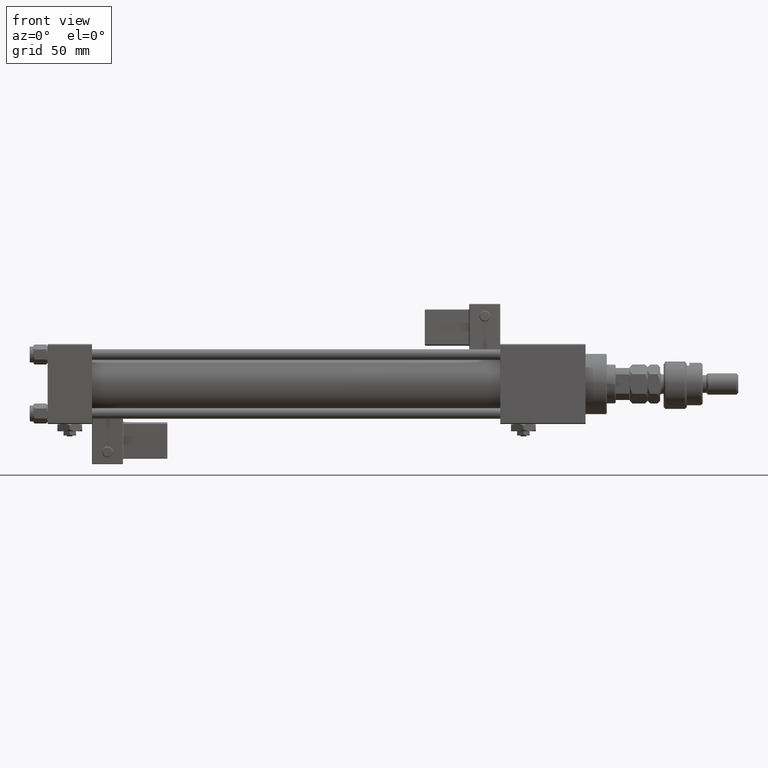
[diagram: clean part render]
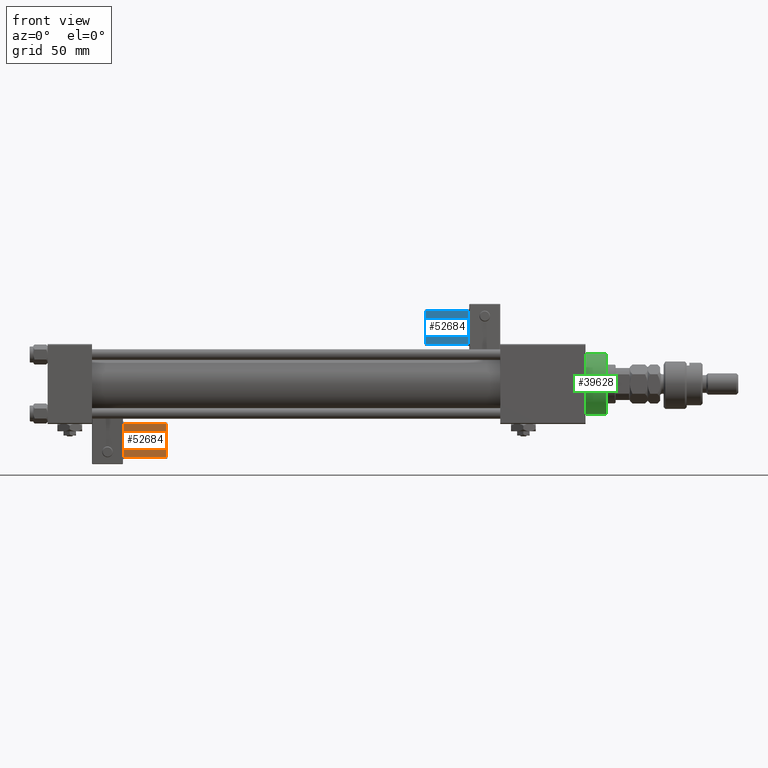
[diagram: same view with three faces highlighted in distinct colors, each labeled with its STEP entity id]
A machine part, front view with three faces highlighted in distinct colors.
Their STEP definitions:

[orange] entity #52684 — the highlighted planar face has unit normal (0, 0.9994, 0.0353).
#406 = VECTOR ( 'NONE', #13744, 1000.000000000000000 ) ;
#3662 = EDGE_LOOP ( 'NONE', ( #29032, #28298, #34291, #43010 ) ) ;
#5595 = CARTESIAN_POINT ( 'NONE',  ( 33.75000000000000000, -30.25000000000000000, 21.50000000000000000 ) ) ;
#6099 = CARTESIAN_POINT ( 'NONE',  ( 9.250000000000001776, -30.25000000000000000, 21.50000000000000000 ) ) ;
#6615 = VERTEX_POINT ( 'NONE', #13482 ) ;
#6726 = DIRECTION ( 'NONE',  ( 1.334402673828313339E-16, 0.000000000000000000, -1.000000000000000000 ) ) ;
#6818 = CARTESIAN_POINT ( 'NONE',  ( 9.250000000000005329, -30.25000000000000000, 2.500000000000003109 ) ) ;
#7269 = PLANE ( 'NONE',  #21682 ) ;
#13482 = CARTESIAN_POINT ( 'NONE',  ( 33.24999999999999289, -30.25000000000000000, 21.50000000000000000 ) ) ;
#13744 = DIRECTION ( 'NONE',  ( -1.000000000000000000, 0.000000000000000000, -1.334402673828313339E-16 ) ) ;
#14866 = CARTESIAN_POINT ( 'NONE',  ( 9.250000000000005329, -30.25000000000000000, 2.000000000000001776 ) ) ;
#15122 = CARTESIAN_POINT ( 'NONE',  ( 33.24999999999999289, -30.25000000000000000, 22.00000000000000355 ) ) ;
#18783 = VERTEX_POINT ( 'NONE', #6818 ) ;
#21682 = AXIS2_PLACEMENT_3D ( 'NONE', #38612, #38897, #56601 ) ;
#24133 = DIRECTION ( 'NONE',  ( 1.000000000000000000, -0.000000000000000000, 1.334402673828313339E-16 ) ) ;
#27674 = LINE ( 'NONE', #5595, #406 ) ;
#28298 = ORIENTED_EDGE ( 'NONE', *, *, #47053, .T. ) ;
#29032 = ORIENTED_EDGE ( 'NONE', *, *, #29633, .T. ) ;
#29633 = EDGE_CURVE ( 'NONE', #36880, #18783, #32272, .T. ) ;
#31743 = LINE ( 'NONE', #49186, #53990 ) ;
#32272 = LINE ( 'NONE', #14866, #55106 ) ;
#33685 = FACE_OUTER_BOUND ( 'NONE', #3662, .T. ) ;
#34291 = ORIENTED_EDGE ( 'NONE', *, *, #56419, .T. ) ;
#36880 = VERTEX_POINT ( 'NONE', #6099 ) ;
#38612 = CARTESIAN_POINT ( 'NONE',  ( 33.75000000000000000, -30.25000000000000000, 22.00000000000000355 ) ) ;
#38897 = DIRECTION ( 'NONE',  ( -0.000000000000000000, 1.000000000000000000, 0.000000000000000000 ) ) ;
#40703 = VERTEX_POINT ( 'NONE', #41594 ) ;
#41594 = CARTESIAN_POINT ( 'NONE',  ( 33.24999999999999289, -30.25000000000000000, 2.500000000000006661 ) ) ;
#42224 = VECTOR ( 'NONE', #54899, 1000.000000000000000 ) ;
#43010 = ORIENTED_EDGE ( 'NONE', *, *, #55966, .T. ) ;
#47053 = EDGE_CURVE ( 'NONE', #18783, #40703, #31743, .T. ) ;
#49186 = CARTESIAN_POINT ( 'NONE',  ( 33.75000000000000000, -30.25000000000000000, 2.500000000000005773 ) ) ;
#52684 = ADVANCED_FACE ( 'NONE', ( #33685 ), #7269, .F. ) ;
#53990 = VECTOR ( 'NONE', #24133, 1000.000000000000000 ) ;
#54610 = LINE ( 'NONE', #15122, #42224 ) ;
#54899 = DIRECTION ( 'NONE',  ( -1.734723475976807341E-16, -0.000000000000000000, 1.000000000000000000 ) ) ;
#55106 = VECTOR ( 'NONE', #6726, 1000.000000000000000 ) ;
#55966 = EDGE_CURVE ( 'NONE', #6615, #36880, #27674, .T. ) ;
#56419 = EDGE_CURVE ( 'NONE', #40703, #6615, #54610, .T. ) ;
#56601 = DIRECTION ( 'NONE',  ( 0.000000000000000000, -0.000000000000000000, 1.000000000000000000 ) ) ;

[blue] entity #52684 — the highlighted planar face has unit normal (0, 0.9994, -0.0353).
#406 = VECTOR ( 'NONE', #13744, 1000.000000000000000 ) ;
#3662 = EDGE_LOOP ( 'NONE', ( #29032, #28298, #34291, #43010 ) ) ;
#5595 = CARTESIAN_POINT ( 'NONE',  ( 33.75000000000000000, -30.25000000000000000, 21.50000000000000000 ) ) ;
#6099 = CARTESIAN_POINT ( 'NONE',  ( 9.250000000000001776, -30.25000000000000000, 21.50000000000000000 ) ) ;
#6615 = VERTEX_POINT ( 'NONE', #13482 ) ;
#6726 = DIRECTION ( 'NONE',  ( 1.334402673828313339E-16, 0.000000000000000000, -1.000000000000000000 ) ) ;
#6818 = CARTESIAN_POINT ( 'NONE',  ( 9.250000000000005329, -30.25000000000000000, 2.500000000000003109 ) ) ;
#7269 = PLANE ( 'NONE',  #21682 ) ;
#13482 = CARTESIAN_POINT ( 'NONE',  ( 33.24999999999999289, -30.25000000000000000, 21.50000000000000000 ) ) ;
#13744 = DIRECTION ( 'NONE',  ( -1.000000000000000000, 0.000000000000000000, -1.334402673828313339E-16 ) ) ;
#14866 = CARTESIAN_POINT ( 'NONE',  ( 9.250000000000005329, -30.25000000000000000, 2.000000000000001776 ) ) ;
#15122 = CARTESIAN_POINT ( 'NONE',  ( 33.24999999999999289, -30.25000000000000000, 22.00000000000000355 ) ) ;
#18783 = VERTEX_POINT ( 'NONE', #6818 ) ;
#21682 = AXIS2_PLACEMENT_3D ( 'NONE', #38612, #38897, #56601 ) ;
#24133 = DIRECTION ( 'NONE',  ( 1.000000000000000000, -0.000000000000000000, 1.334402673828313339E-16 ) ) ;
#27674 = LINE ( 'NONE', #5595, #406 ) ;
#28298 = ORIENTED_EDGE ( 'NONE', *, *, #47053, .T. ) ;
#29032 = ORIENTED_EDGE ( 'NONE', *, *, #29633, .T. ) ;
#29633 = EDGE_CURVE ( 'NONE', #36880, #18783, #32272, .T. ) ;
#31743 = LINE ( 'NONE', #49186, #53990 ) ;
#32272 = LINE ( 'NONE', #14866, #55106 ) ;
#33685 = FACE_OUTER_BOUND ( 'NONE', #3662, .T. ) ;
#34291 = ORIENTED_EDGE ( 'NONE', *, *, #56419, .T. ) ;
#36880 = VERTEX_POINT ( 'NONE', #6099 ) ;
#38612 = CARTESIAN_POINT ( 'NONE',  ( 33.75000000000000000, -30.25000000000000000, 22.00000000000000355 ) ) ;
#38897 = DIRECTION ( 'NONE',  ( -0.000000000000000000, 1.000000000000000000, 0.000000000000000000 ) ) ;
#40703 = VERTEX_POINT ( 'NONE', #41594 ) ;
#41594 = CARTESIAN_POINT ( 'NONE',  ( 33.24999999999999289, -30.25000000000000000, 2.500000000000006661 ) ) ;
#42224 = VECTOR ( 'NONE', #54899, 1000.000000000000000 ) ;
#43010 = ORIENTED_EDGE ( 'NONE', *, *, #55966, .T. ) ;
#47053 = EDGE_CURVE ( 'NONE', #18783, #40703, #31743, .T. ) ;
#49186 = CARTESIAN_POINT ( 'NONE',  ( 33.75000000000000000, -30.25000000000000000, 2.500000000000005773 ) ) ;
#52684 = ADVANCED_FACE ( 'NONE', ( #33685 ), #7269, .F. ) ;
#53990 = VECTOR ( 'NONE', #24133, 1000.000000000000000 ) ;
#54610 = LINE ( 'NONE', #15122, #42224 ) ;
#54899 = DIRECTION ( 'NONE',  ( -1.734723475976807341E-16, -0.000000000000000000, 1.000000000000000000 ) ) ;
#55106 = VECTOR ( 'NONE', #6726, 1000.000000000000000 ) ;
#55966 = EDGE_CURVE ( 'NONE', #6615, #36880, #27674, .T. ) ;
#56419 = EDGE_CURVE ( 'NONE', #40703, #6615, #54610, .T. ) ;
#56601 = DIRECTION ( 'NONE',  ( 0.000000000000000000, -0.000000000000000000, 1.000000000000000000 ) ) ;

[green] entity #39628 — the highlighted cylindrical surface (edge-blend (fillet) strip) has radius 17 mm, axis along (-1, -0, -0).
#1051 = CIRCLE ( 'NONE', #23341, 17.00000000000000000 ) ;
#1295 = CARTESIAN_POINT ( 'NONE',  ( -17.00000000000000000, 0.000000000000000000, 40.19999999999999574 ) ) ;
#1899 = CARTESIAN_POINT ( 'NONE',  ( 17.00000000000000000, 2.081899558550500280E-15, 28.69999999999999929 ) ) ;
#4827 = ORIENTED_EDGE ( 'NONE', *, *, #12313, .T. ) ;
#7822 = LINE ( 'NONE', #44095, #36360 ) ;
#9288 = CYLINDRICAL_SURFACE ( 'NONE', #31392, 17.00000000000000000 ) ;
#12313 = EDGE_CURVE ( 'NONE', #18157, #30971, #1051, .T. ) ;
#12514 = CARTESIAN_POINT ( 'NONE',  ( 0.000000000000000000, 0.000000000000000000, 28.69999999999999929 ) ) ;
#13083 = DIRECTION ( 'NONE',  ( -1.000000000000000000, 0.000000000000000000, 0.000000000000000000 ) ) ;
#14029 = CARTESIAN_POINT ( 'NONE',  ( 0.000000000000000000, 0.000000000000000000, 40.19999999999999574 ) ) ;
#14371 = VERTEX_POINT ( 'NONE', #22991 ) ;
#17207 = VECTOR ( 'NONE', #28260, 1000.000000000000000 ) ;
#18157 = VERTEX_POINT ( 'NONE', #19835 ) ;
#19770 = VERTEX_POINT ( 'NONE', #1899 ) ;
#19835 = CARTESIAN_POINT ( 'NONE',  ( 17.00000000000000000, 2.081899558550500280E-15, 40.19999999999999574 ) ) ;
#21815 = DIRECTION ( 'NONE',  ( 1.000000000000000000, 0.000000000000000000, 0.000000000000000000 ) ) ;
#22991 = CARTESIAN_POINT ( 'NONE',  ( -17.00000000000000000, 0.000000000000000000, 28.69999999999999929 ) ) ;
#23341 = AXIS2_PLACEMENT_3D ( 'NONE', #14029, #40736, #27380 ) ;
#26432 = DIRECTION ( 'NONE',  ( -0.000000000000000000, -0.000000000000000000, -1.000000000000000000 ) ) ;
#27315 = AXIS2_PLACEMENT_3D ( 'NONE', #12514, #47087, #21815 ) ;
#27380 = DIRECTION ( 'NONE',  ( 1.000000000000000000, 0.000000000000000000, 0.000000000000000000 ) ) ;
#28260 = DIRECTION ( 'NONE',  ( -0.000000000000000000, -0.000000000000000000, -1.000000000000000000 ) ) ;
#30446 = EDGE_CURVE ( 'NONE', #14371, #19770, #46819, .T. ) ;
#30971 = VERTEX_POINT ( 'NONE', #1295 ) ;
#31344 = FACE_OUTER_BOUND ( 'NONE', #45744, .T. ) ;
#31392 = AXIS2_PLACEMENT_3D ( 'NONE', #34858, #26432, #13083 ) ;
#32455 = EDGE_CURVE ( 'NONE', #18157, #19770, #45403, .T. ) ;
#34858 = CARTESIAN_POINT ( 'NONE',  ( 0.000000000000000000, 0.000000000000000000, 40.70000000000000284 ) ) ;
#36360 = VECTOR ( 'NONE', #57156, 1000.000000000000000 ) ;
#36675 = CARTESIAN_POINT ( 'NONE',  ( 17.00000000000000000, 2.081899558550500280E-15, 40.70000000000000284 ) ) ;
#38718 = ORIENTED_EDGE ( 'NONE', *, *, #30446, .T. ) ;
#38920 = ORIENTED_EDGE ( 'NONE', *, *, #49769, .T. ) ;
#39628 = ADVANCED_FACE ( 'NONE', ( #31344 ), #9288, .T. ) ;
#40736 = DIRECTION ( 'NONE',  ( 0.000000000000000000, 0.000000000000000000, -1.000000000000000000 ) ) ;
#42155 = ORIENTED_EDGE ( 'NONE', *, *, #32455, .F. ) ;
#44095 = CARTESIAN_POINT ( 'NONE',  ( -17.00000000000000000, 0.000000000000000000, 40.70000000000000284 ) ) ;
#45403 = LINE ( 'NONE', #36675, #17207 ) ;
#45744 = EDGE_LOOP ( 'NONE', ( #42155, #4827, #38920, #38718 ) ) ;
#46819 = CIRCLE ( 'NONE', #27315, 17.00000000000000000 ) ;
#47087 = DIRECTION ( 'NONE',  ( 0.000000000000000000, 0.000000000000000000, 1.000000000000000000 ) ) ;
#49769 = EDGE_CURVE ( 'NONE', #30971, #14371, #7822, .T. ) ;
#57156 = DIRECTION ( 'NONE',  ( -0.000000000000000000, -0.000000000000000000, -1.000000000000000000 ) ) ;